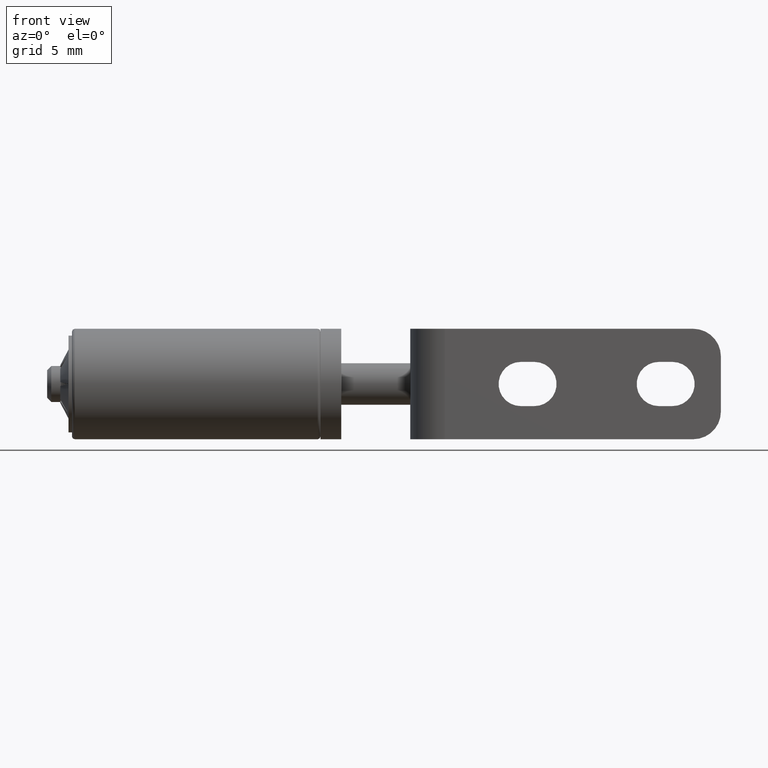
[diagram: clean part render]
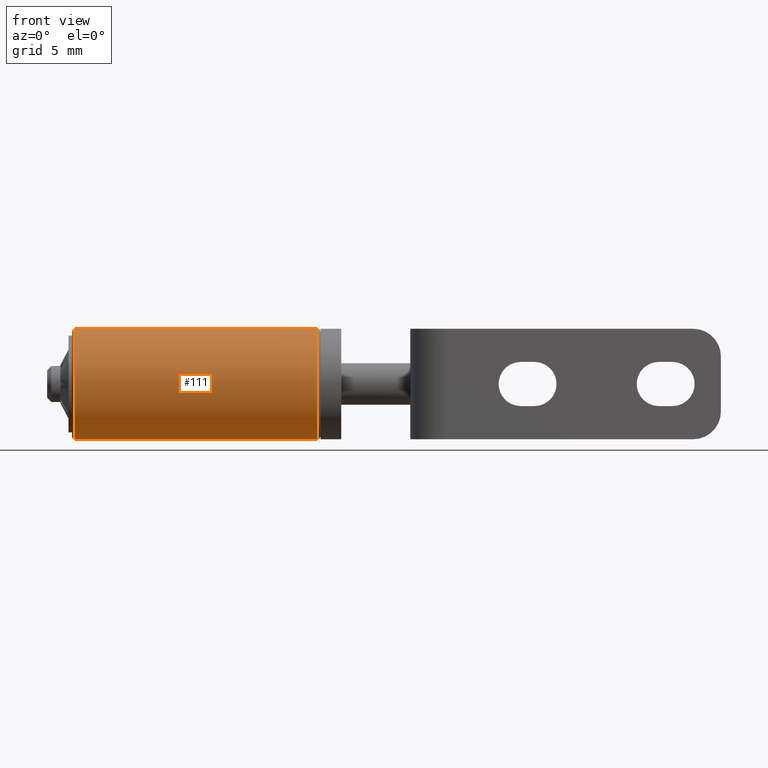
[diagram: same view with one face highlighted and labeled with its STEP entity id]
A machine part, front view. The second image highlights one B-rep face of the part: STEP entity #111.
In plain terms, the highlighted cylindrical surface (partial cylindrical patch) has radius 4 mm, axis along (-1, -0, -0).
Its self-contained STEP definition (entity closure, byte-faithful):
#111=ADVANCED_FACE('',(#928),#927,.T.);
#927=CYLINDRICAL_SURFACE('',#2552,4.00000000000E+00);
#928=FACE_OUTER_BOUND('',#2553,.T.);
#2549=CARTESIAN_POINT('',(0.00000000000E+00,0.00000000000E+00,0.00000000000E+00));
#2550=DIRECTION('',(-1.00000000000E+00,-0.00000000000E+00,-0.00000000000E+00));
#2551=DIRECTION('',(0.00000000000E+00,9.99958130026E-01,9.15085759933E-03));
#2552=AXIS2_PLACEMENT_3D('',#2549,#2550,#2551);
#2553=EDGE_LOOP('',(#3524,#3525,#3526,#3527));
#3524=ORIENTED_EDGE('',*,*,#4347,.F.);
#3525=ORIENTED_EDGE('',*,*,#4365,.F.);
#3526=ORIENTED_EDGE('',*,*,#4322,.F.);
#3527=ORIENTED_EDGE('',*,*,#4366,.F.);
#4322=EDGE_CURVE('',#6047,#6074,#6088,.T.);
#4347=EDGE_CURVE('',#6221,#6241,#6255,.T.);
#4365=EDGE_CURVE('',#6074,#6221,#6371,.T.);
#4366=EDGE_CURVE('',#6241,#6047,#6377,.T.);
#6047=VERTEX_POINT('',#8658);
#6074=VERTEX_POINT('',#8677);
#6088=CIRCLE('',#8690,4.00000000000E+00);
#6221=VERTEX_POINT('',#8774);
#6241=VERTEX_POINT('',#8788);
#6255=CIRCLE('',#8801,4.00000000000E+00);
#6371=LINE('',#8872,#8873);
#6377=LINE('',#8875,#8876);
#8658=CARTESIAN_POINT('',(8.80000000000E+00,3.35256162083E+00,2.18181818182E+00));
#8677=CARTESIAN_POINT('',(8.80000000000E+00,3.35256162083E+00,-2.18181818182E+00));
#8687=CARTESIAN_POINT('',(8.80000000000E+00,0.00000000000E+00,0.00000000000E+00));
#8688=DIRECTION('',(1.00000000000E+00,0.00000000000E+00,-0.00000000000E+00));
#8689=DIRECTION('',(0.00000000000E+00,8.38140405208E-01,5.45454545455E-01));
#8690=AXIS2_PLACEMENT_3D('',#8687,#8688,#8689);
#8774=CARTESIAN_POINT('',(-8.80000000000E+00,3.35256162083E+00,-2.18181818182E+00));
#8788=CARTESIAN_POINT('',(-8.80000000000E+00,3.35256162083E+00,2.18181818182E+00));
#8798=CARTESIAN_POINT('',(-8.80000000000E+00,0.00000000000E+00,0.00000000000E+00));
#8799=DIRECTION('',(-1.00000000000E+00,0.00000000000E+00,0.00000000000E+00));
#8800=DIRECTION('',(0.00000000000E+00,8.38140405208E-01,-5.45454545455E-01));
#8801=AXIS2_PLACEMENT_3D('',#8798,#8799,#8800);
#8872=CARTESIAN_POINT('',(8.80000000000E+00,3.35256162083E+00,-2.18181818182E+00));
#8873=VECTOR('',#8874,1.76000000000E+01);
#8874=DIRECTION('',(-1.00000000000E+00,0.00000000000E+00,0.00000000000E+00));
#8875=CARTESIAN_POINT('',(-8.80000000000E+00,3.35256162083E+00,2.18181818182E+00));
#8876=VECTOR('',#8877,1.76000000000E+01);
#8877=DIRECTION('',(1.00000000000E+00,0.00000000000E+00,0.00000000000E+00));